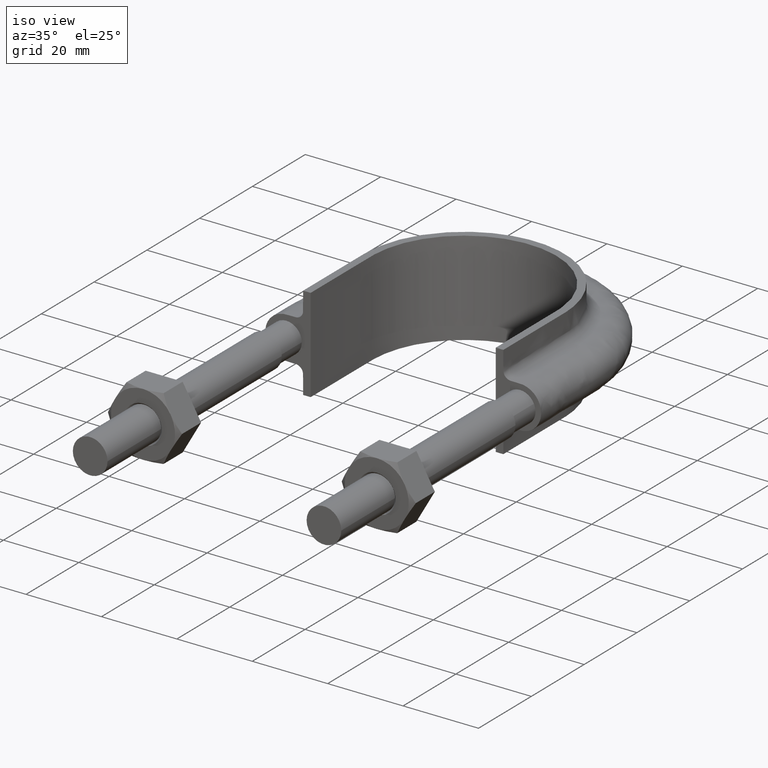
[diagram: clean part render]
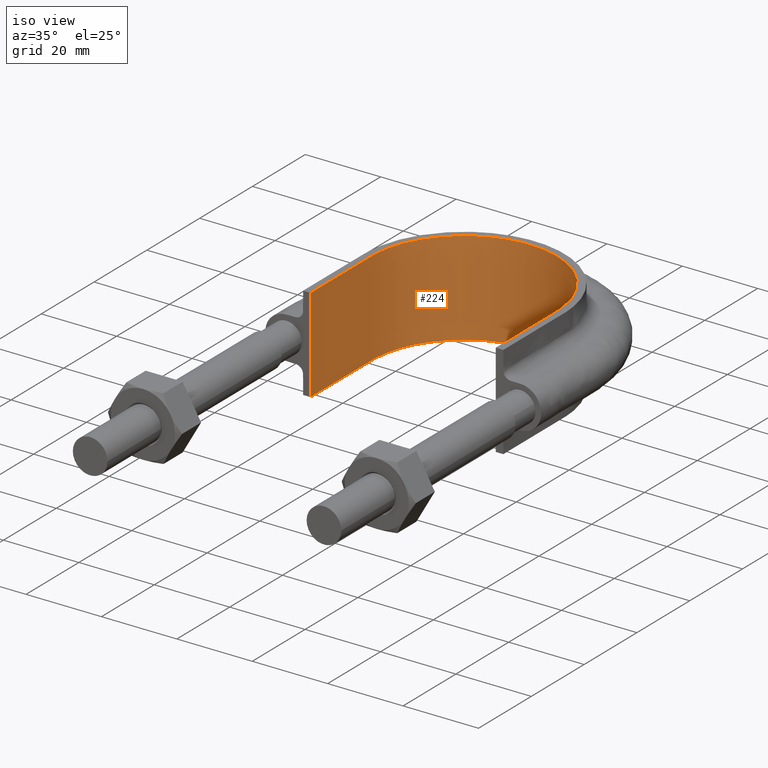
[diagram: tour spotlight — one face highlighted and labeled with its STEP entity id]
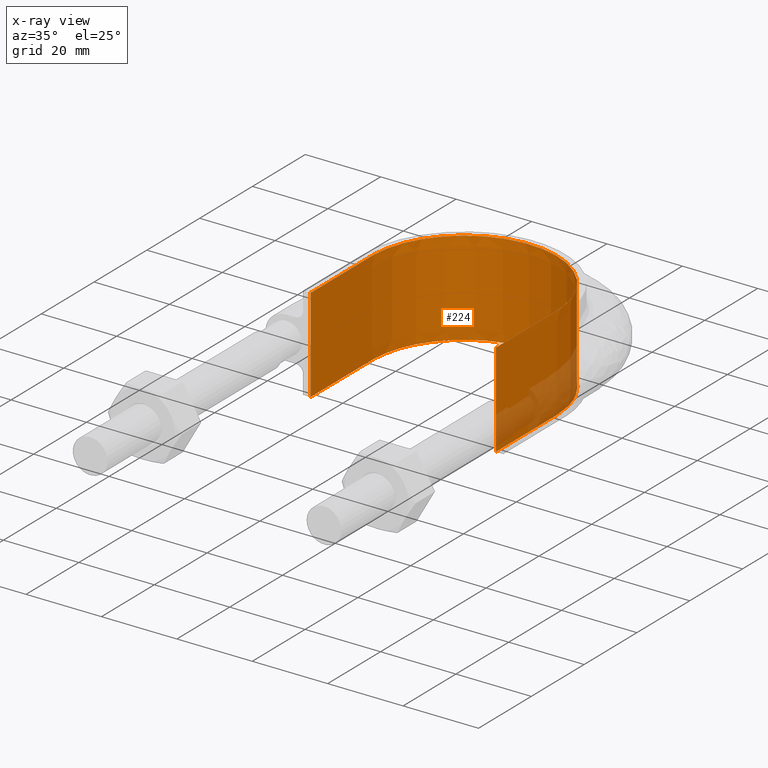
[diagram: x-ray of the same camera — body ghosted, this tour face saturated]
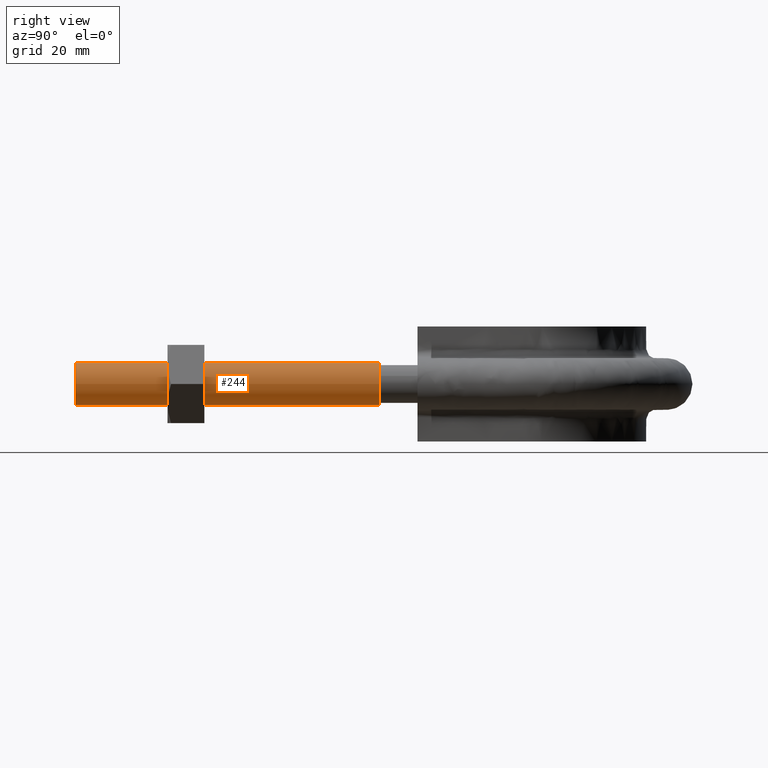
[diagram: tour spotlight — one face highlighted and labeled with its STEP entity id]
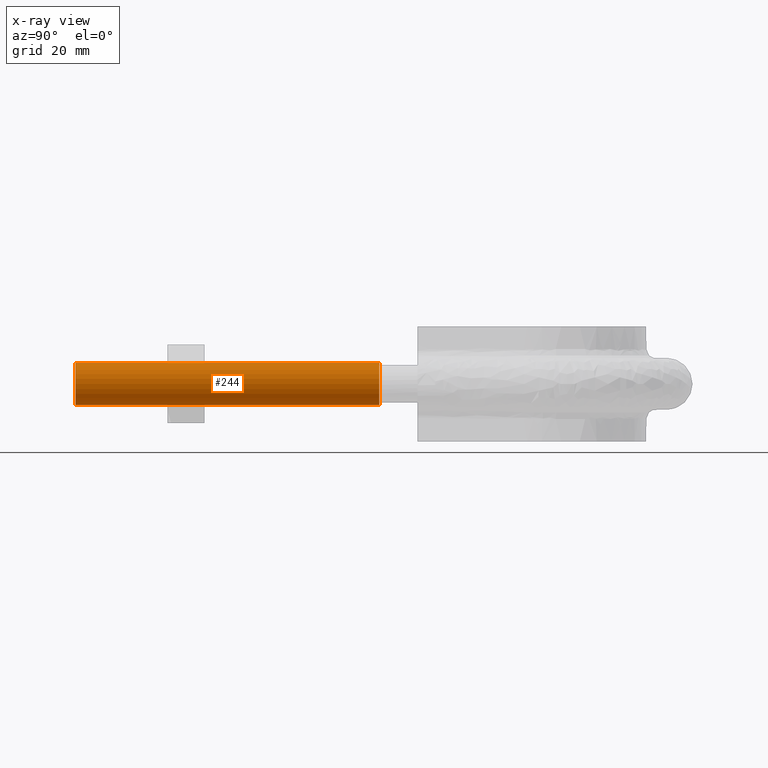
[diagram: x-ray of the same camera — body ghosted, this tour face saturated]
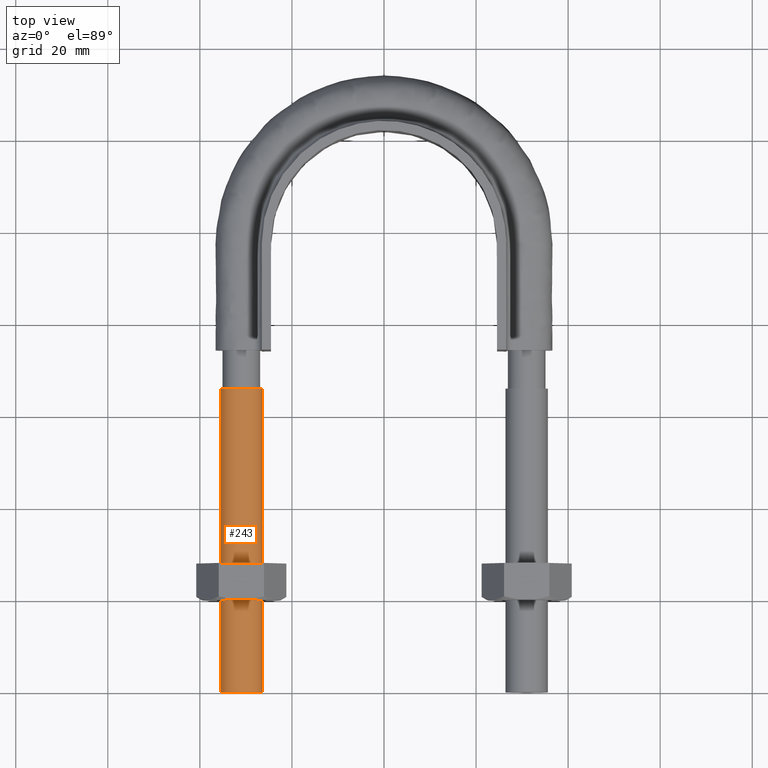
[diagram: tour spotlight — one face highlighted and labeled with its STEP entity id]
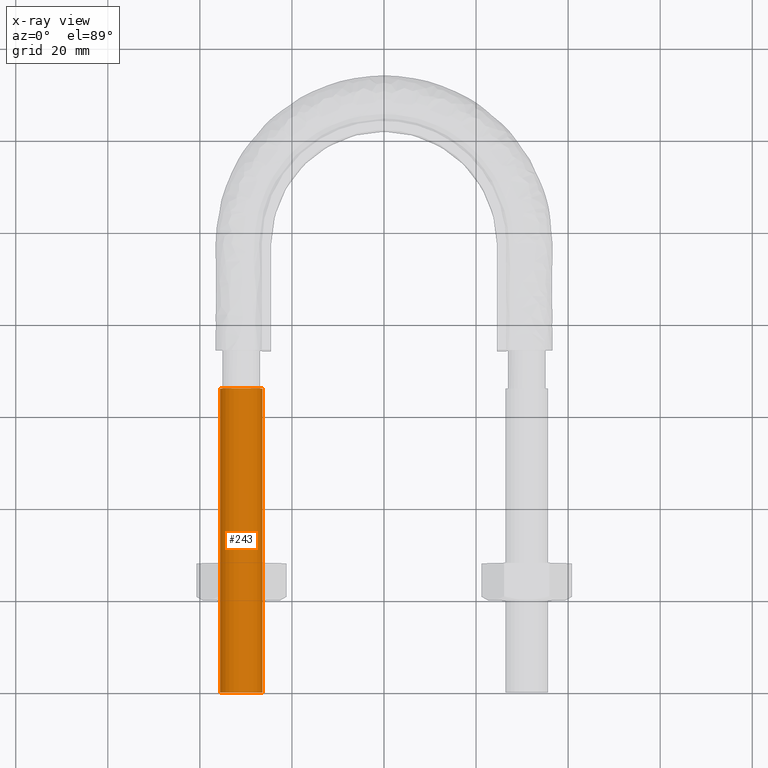
[diagram: x-ray of the same camera — body ghosted, this tour face saturated]
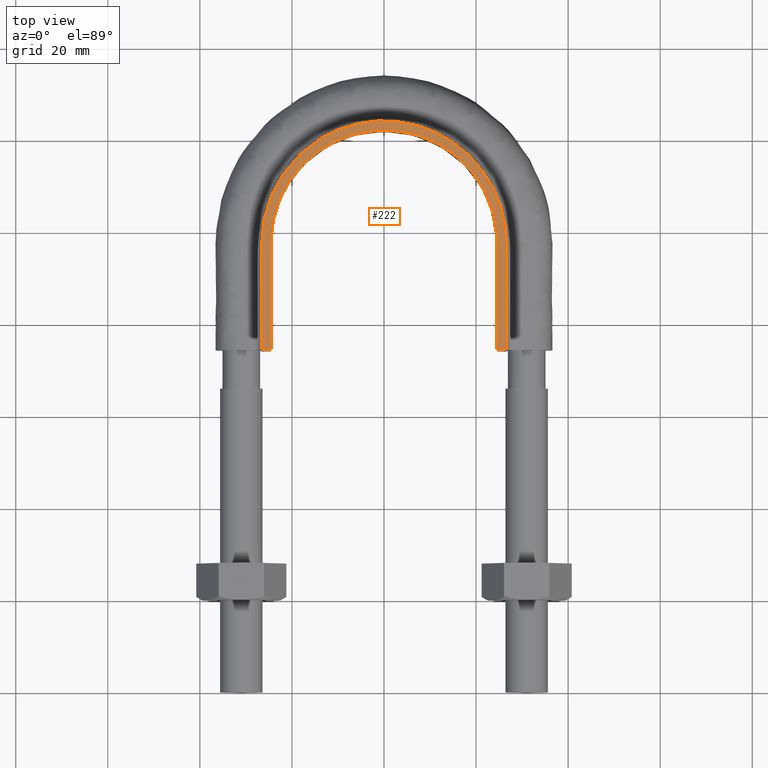
[diagram: tour spotlight — one face highlighted and labeled with its STEP entity id]
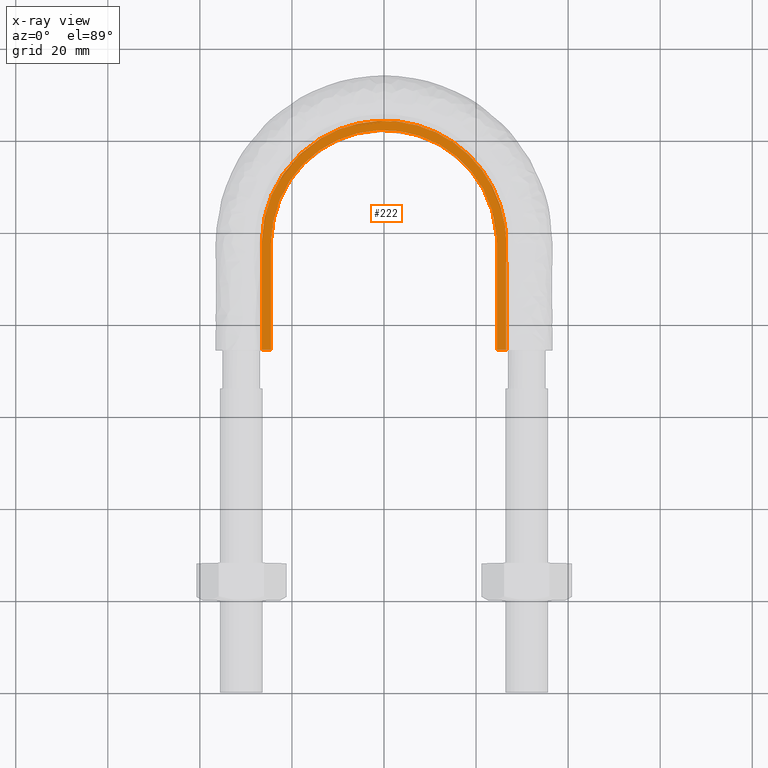
[diagram: x-ray of the same camera — body ghosted, this tour face saturated]
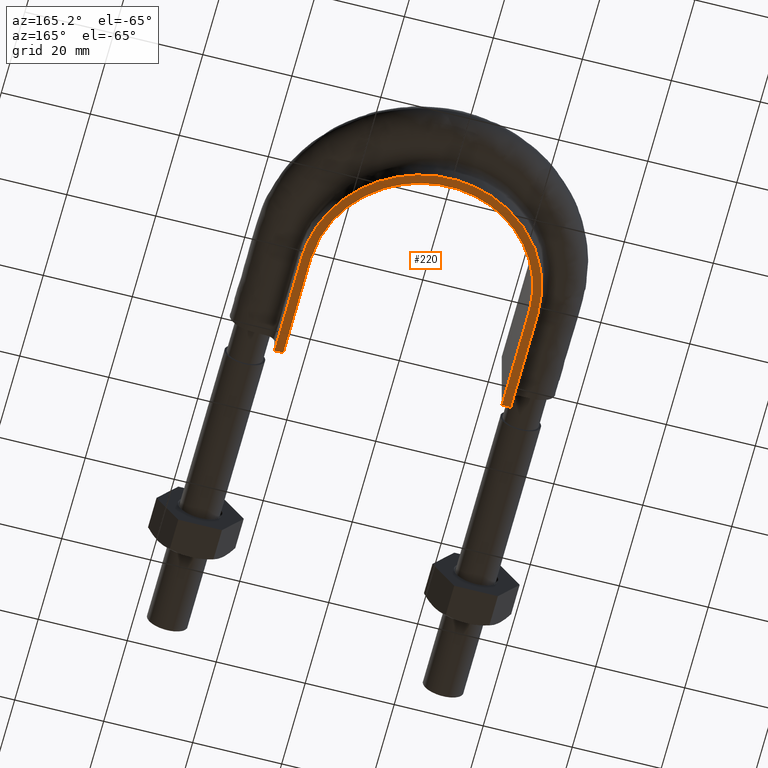
[diagram: tour spotlight — one face highlighted and labeled with its STEP entity id]
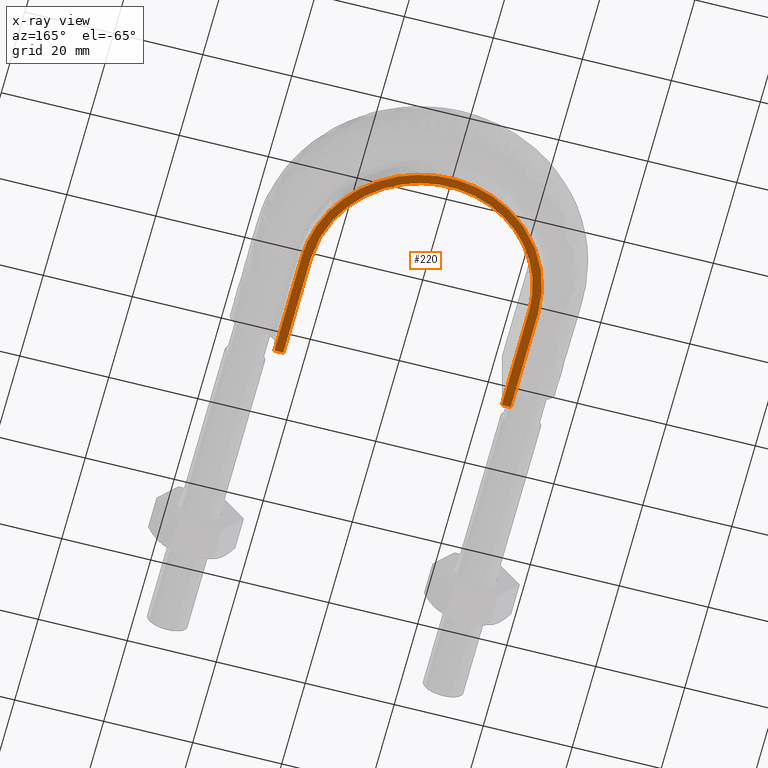
[diagram: x-ray of the same camera — body ghosted, this tour face saturated]
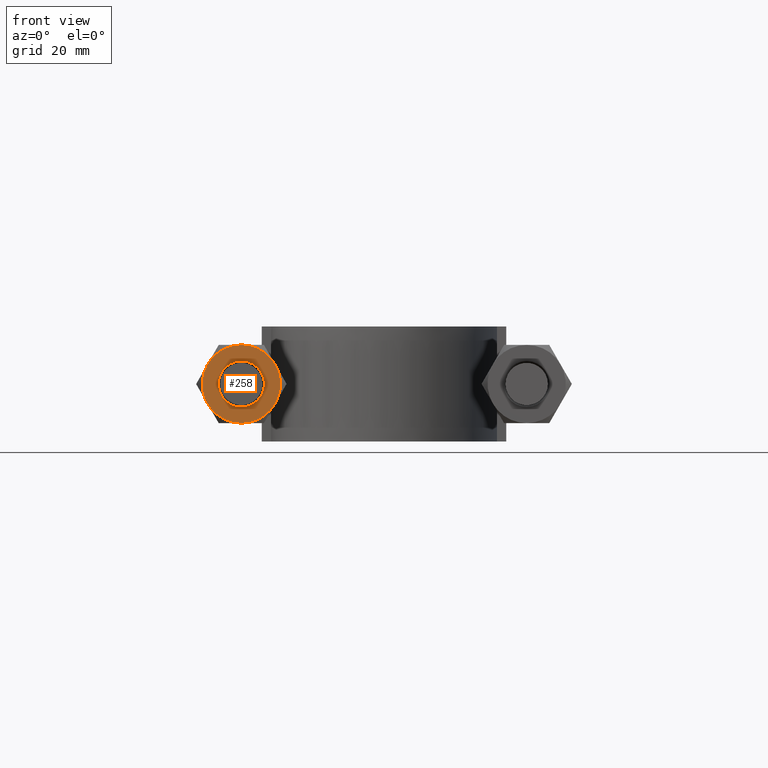
[diagram: tour spotlight — one face highlighted and labeled with its STEP entity id]
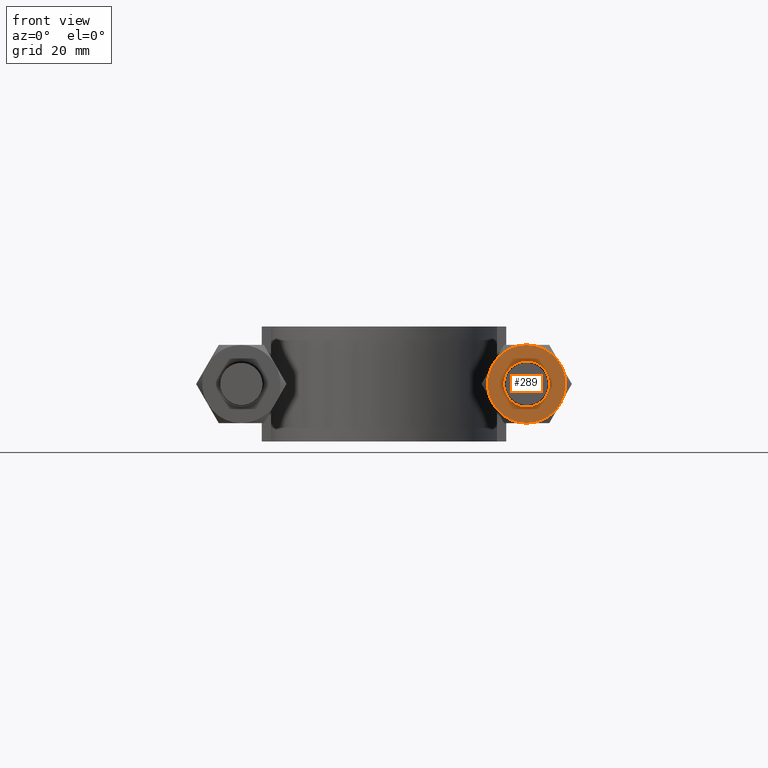
[diagram: tour spotlight — one face highlighted and labeled with its STEP entity id]
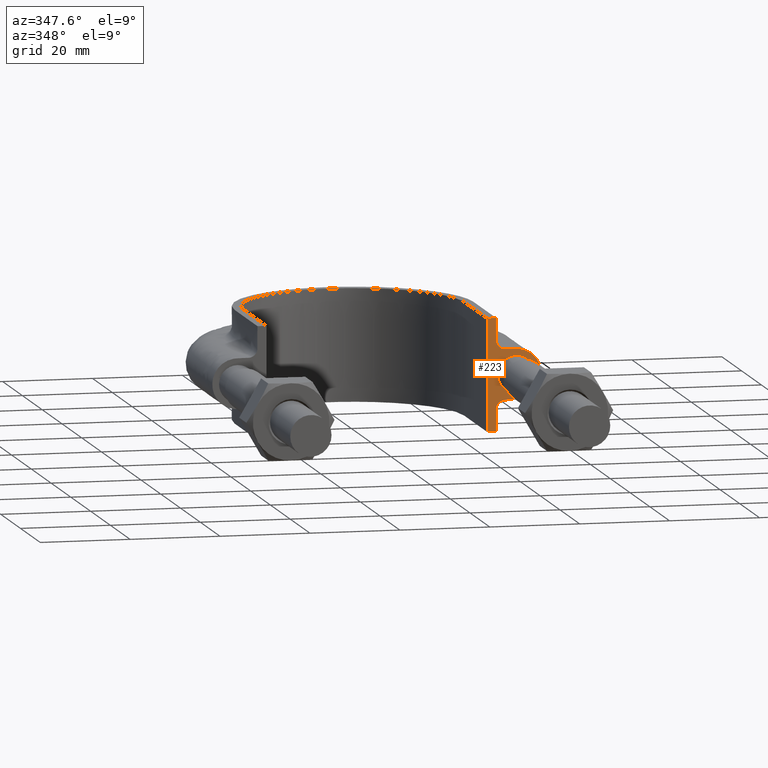
[diagram: tour spotlight — one face highlighted and labeled with its STEP entity id]
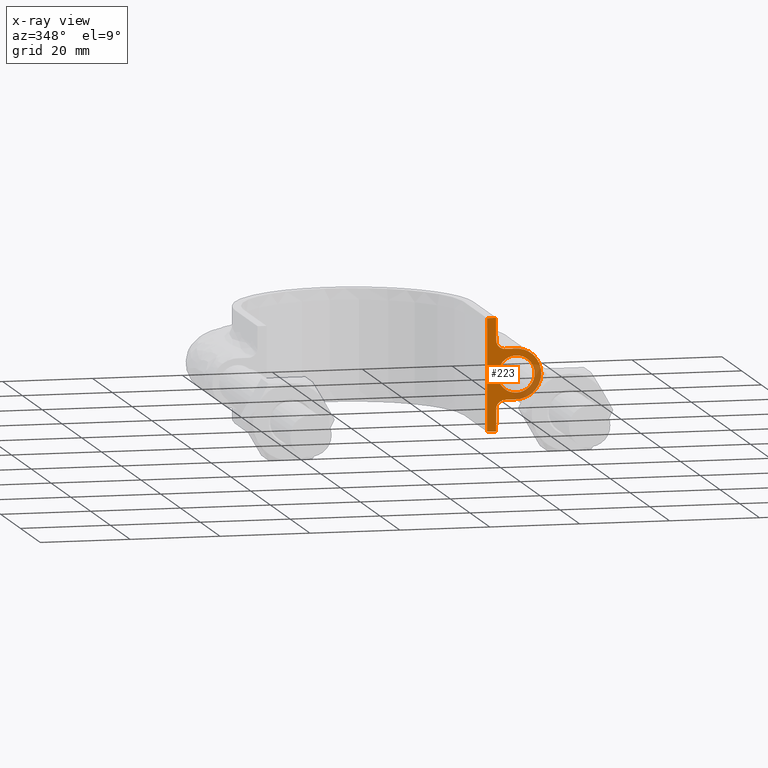
[diagram: x-ray of the same camera — body ghosted, this tour face saturated]
A machine part: a face-by-face anatomy tour. The part has 76 B-rep faces; the first image is the clean iso view, then the 8 largest visible faces are spotlighted one at a time (largest first), each with its STEP entity span.

Face 1 — iso view, entity #224. An x-ray twin of the same camera follows (body ghosted, this face saturated) — the face is partly hidden behind the body. In plain terms, the highlighted face is a SurfaceOfExtrusion surface.
Definition (entity closure, byte-faithful):
#224 = ADVANCED_FACE( '', ( #308 ), #309, .T. );
#308 = FACE_OUTER_BOUND( '', #1006, .T. );
#309 = SURFACE_OF_LINEAR_EXTRUSION( '', #1007, #1008 );
#1006 = EDGE_LOOP( '', ( #1499, #1500, #1501, #1502 ) );
#1007 = B_SPLINE_CURVE_WITH_KNOTS( '', 3, ( #1503, #1504, #1505, #1506, #1507, #1508, #1509, #1510, #1511, #1512, #1513, #1514, #1515, #1516, #1517, #1518, #1519 ), .UNSPECIFIED., .F., .F., ( 4, 3, 1, 1, 1, 1, 1, 1, 1, 3, 4 ), ( -7.85424354243542, -7.00000000000000, -6.50000000000000, -6.00000000000000, -5.00000000000000, -4.00000000000000, -3.00000000000000, -2.00000000000000, -1.50000000000000, -1.00000000000000, -0.145756457564576 ), .UNSPECIFIED. );
#1008 = VECTOR( '', #1520, 1000.00000000000 );
#1499 = ORIENTED_EDGE( '', *, *, #2003, .T. );
#1500 = ORIENTED_EDGE( '', *, *, #2008, .T. );
#1501 = ORIENTED_EDGE( '', *, *, #2015, .F. );
#1502 = ORIENTED_EDGE( '', *, *, #2013, .T. );
#1503 = CARTESIAN_POINT( '', ( 24.5500000000000, 74.3000000000000, 12.5000100000910 ) );
#1504 = CARTESIAN_POINT( '', ( 24.5500000000000, 82.0166666666667, 12.5000100000910 ) );
#1505 = CARTESIAN_POINT( '', ( 24.5500000000000, 89.7333333333333, 12.5000100000910 ) );
#1506 = CARTESIAN_POINT( '', ( 24.5500000000000, 97.4500000000000, 12.5000100000910 ) );
#1507 = CARTESIAN_POINT( '', ( 24.5500000000000, 99.5780025041717, 12.5000100000910 ) );
#1508 = CARTESIAN_POINT( '', ( 23.9738358905282, 103.879860777333, 12.5000100000910 ) );
#1509 = CARTESIAN_POINT( '', ( 20.6884777838097, 111.863307199879, 12.5000100000910 ) );
#1510 = CARTESIAN_POINT( '', ( 12.8483754366917, 119.705931314422, 12.5000100000910 ) );
#1511 = CARTESIAN_POINT( '', ( 2.20195579749634E-014, 123.147034342789, 12.5000100000910 ) );
#1512 = CARTESIAN_POINT( '', ( -12.8483754366917, 119.705931314422, 12.5000100000910 ) );
#1513 = CARTESIAN_POINT( '', ( -20.6884777838097, 111.863307199879, 12.5000100000910 ) );
#1514 = CARTESIAN_POINT( '', ( -23.9738358905281, 103.879860777333, 12.5000100000910 ) );
#1515 = CARTESIAN_POINT( '', ( -24.5500000000000, 99.5780025041717, 12.5000100000910 ) );
#1516 = CARTESIAN_POINT( '', ( -24.5500000000000, 97.4500000000000, 12.5000100000910 ) );
#1517 = CARTESIAN_POINT( '', ( -24.5500000000000, 89.7333333333333, 12.5000100000910 ) );
#1518 = CARTESIAN_POINT( '', ( -24.5500000000000, 82.0166666666667, 12.5000100000910 ) );
#1519 = CARTESIAN_POINT( '', ( -24.5500000000000, 74.3000000000000, 12.5000100000910 ) );
#1520 = DIRECTION( '', ( 0.000000000000000, 0.000000000000000, -1.00000000000000 ) );
#2003 = EDGE_CURVE( '', #2155, #2156, #2157, .T. );
#2008 = EDGE_CURVE( '', #2156, #2165, #2166, .F. );
#2013 = EDGE_CURVE( '', #2173, #2155, #2174, .T. );
#2015 = EDGE_CURVE( '', #2173, #2165, #2176, .T. );
#2155 = VERTEX_POINT( '', #2405 );
#2156 = VERTEX_POINT( '', #2406 );
#2157 = LINE( '', #2407, #2408 );
#2165 = VERTEX_POINT( '', #2457 );
#2166 = B_SPLINE_CURVE_WITH_KNOTS( '', 3, ( #2458, #2459, #2460, #2461, #2462, #2463, #2464, #2465, #2466, #2467, #2468, #2469, #2470, #2471, #2472, #2473, #2474 ), .UNSPECIFIED., .F., .F., ( 4, 3, 1, 1, 1, 1, 1, 1, 1, 3, 4 ), ( -7.85424354243542, -7.00000000000000, -6.50000000000000, -6.00000000000000, -5.00000000000000, -4.00000000000000, -3.00000000000000, -2.00000000000000, -1.50000000000000, -1.00000000000000, -0.145756457564576 ), .UNSPECIFIED. );
#2173 = VERTEX_POINT( '', #2544 );
#2174 = B_SPLINE_CURVE_WITH_KNOTS( '', 3, ( #2545, #2546, #2547, #2548, #2549, #2550, #2551, #2552, #2553, #2554, #2555, #2556, #2557, #2558, #2559, #2560, #2561, #2562, #2563, #2564, #2565, #2566, #2567, #2568, #2569, #2570, #2571, #2572, #2573, #2574, #2575, #2576, #2577, #2578, #2579, #2580, #2581, #2582, #2583, #2584, #2585, #2586, #2587, #2588, #2589, #2590, #2591, #2592, #2593, #2594, #2595, #2596, #2597, #2598, #2599, #2600, #2601, #2602, #2603, #2604, #2605, #2606, #2607, #2608, #2609, #2610, #2611 ), .UNSPECIFIED., .F., .F., ( 4, 1, 2, 2, 2, 2, 2, 2, 2, 2, 2, 2, 2, 2, 2, 2, 2, 2, 2, 2, 2, 2, 2, 2, 2, 2, 2, 2, 2, 2, 2, 2, 1, 1, 4 ), ( 0.000000000000000, 0.0154145326467002, 0.0231217989700503, 0.0250486155508878, 0.0269754321317254, 0.0308290652934005, 0.0346826984550756, 0.0366095150359132, 0.0385363316167507, 0.0423899647784258, 0.0443167813592634, 0.0462435979401010, 0.0500972311017761, 0.0520240476826136, 0.0539508642634512, 0.0578044974251263, 0.0597313140059639, 0.0616581305868014, 0.0655117637484765, 0.0674385803293141, 0.0693653969101517, 0.0732190300718268, 0.0751458466526643, 0.0770726632335019, 0.0809262963951769, 0.0828531129760145, 0.0847799295568520, 0.0924871958802022, 0.0944140124610398, 0.0963408290418773, 0.100194462203552, 0.102121278784390, 0.104048095365227, 0.107901728526903, 0.123316261173603 ), .UNSPECIFIED. );
#2176 = LINE( '', #2614, #2615 );
#2405 = CARTESIAN_POINT( '', ( -24.5500000000000, 74.3000000000000, 12.5000000000000 ) );
#2406 = CARTESIAN_POINT( '', ( -24.5500000000000, 74.3000000000000, -12.5000000000000 ) );
#2407 = CARTESIAN_POINT( '', ( -24.5500000000000, 74.3000000000000, 12.5000100000910 ) );
#2408 = VECTOR( '', #3051, 1000.00000000000 );
#2457 = CARTESIAN_POINT( '', ( 24.5500000000000, 74.3000000000000, -12.5000000000000 ) );
#2458 = CARTESIAN_POINT( '', ( 24.5500000000000, 74.3000000000000, -12.5000000000000 ) );
#2459 = CARTESIAN_POINT( '', ( 24.5500000000000, 82.0166666666667, -12.5000000000000 ) );
#2460 = CARTESIAN_POINT( '', ( 24.5500000000000, 89.7333333333333, -12.5000000000000 ) );
#2461 = CARTESIAN_POINT( '', ( 24.5500000000000, 97.4500000000000, -12.5000000000000 ) );
#2462 = CARTESIAN_POINT( '', ( 24.5500000000000, 99.5780025041717, -12.5000000000000 ) );
#2463 = CARTESIAN_POINT( '', ( 23.9738358905282, 103.879860777333, -12.5000000000000 ) );
#2464 = CARTESIAN_POINT( '', ( 20.6884777838097, 111.863307199879, -12.5000000000000 ) );
#2465 = CARTESIAN_POINT( '', ( 12.8483754366917, 119.705931314422, -12.5000000000000 ) );
#2466 = CARTESIAN_POINT( '', ( 2.20195579749634E-014, 123.147034342789, -12.5000000000000 ) );
#2467 = CARTESIAN_POINT( '', ( -12.8483754366917, 119.705931314422, -12.5000000000000 ) );
#2468 = CARTESIAN_POINT( '', ( -20.6884777838097, 111.863307199879, -12.5000000000000 ) );
#2469 = CARTESIAN_POINT( '', ( -23.9738358905281, 103.879860777333, -12.5000000000000 ) );
#2470 = CARTESIAN_POINT( '', ( -24.5500000000000, 99.5780025041717, -12.5000000000000 ) );
#2471 = CARTESIAN_POINT( '', ( -24.5500000000000, 97.4500000000000, -12.5000000000000 ) );
#2472 = CARTESIAN_POINT( '', ( -24.5500000000000, 89.7333333333333, -12.5000000000000 ) );
#2473 = CARTESIAN_POINT( '', ( -24.5500000000000, 82.0166666666667, -12.5000000000000 ) );
#2474 = CARTESIAN_POINT( '', ( -24.5500000000000, 74.3000000000000, -12.5000000000000 ) );
#2544 = CARTESIAN_POINT( '', ( 24.5500000000000, 74.3000000000000, 12.5000000000000 ) );
#2545 = CARTESIAN_POINT( '', ( 24.5500000000000, 74.3000000000000, 12.5000000000000 ) );
#2546 = CARTESIAN_POINT( '', ( 24.5500000000000, 79.4384221999800, 12.5000000000000 ) );
#2547 = CARTESIAN_POINT( '', ( 24.5500000000000, 87.1460554999499, 12.5000000000000 ) );
#2548 = CARTESIAN_POINT( '', ( 24.5500000000000, 94.8536887999199, 12.5000000000000 ) );
#2549 = CARTESIAN_POINT( '', ( 24.5500000000000, 98.0652026749074, 12.5000000000000 ) );
#2550 = CARTESIAN_POINT( '', ( 24.5252751330927, 98.7072641688934, 12.5000000000000 ) );
#2551 = CARTESIAN_POINT( '', ( 24.4234462537604, 99.9908760077757, 12.5000000000000 ) );
#2552 = CARTESIAN_POINT( '', ( 24.3467657946690, 100.634220258934, 12.5000000000000 ) );
#2553 = CARTESIAN_POINT( '', ( 24.0418819320213, 102.551204048510, 12.5000000000000 ) );
#2554 = CARTESIAN_POINT( '', ( 23.7423938741596, 103.798075614365, 12.5000000000000 ) );
#2555 = CARTESIAN_POINT( '', ( 22.9567434107526, 106.231455730255, 12.5000000000000 ) );
#2556 = CARTESIAN_POINT( '', ( 22.4705596365819, 107.417957370532, 12.5000000000000 ) );
#2557 = CARTESIAN_POINT( '', ( 21.5925627875954, 109.149619348676, 12.5000000000000 ) );
#2558 = CARTESIAN_POINT( '', ( 21.2766071075014, 109.714973605172, 12.5000000000000 ) );
#2559 = CARTESIAN_POINT( '', ( 20.6053719022684, 110.810534866425, 12.5000000000000 ) );
#2560 = CARTESIAN_POINT( '', ( 20.2492833691971, 111.342698259692, 12.5000000000000 ) );
#2561 = CARTESIAN_POINT( '', ( 19.1215068537777, 112.893787664672, 12.5000000000000 ) );
#2562 = CARTESIAN_POINT( '', ( 18.2907926568853, 113.867682679625, 12.5000000000000 ) );
#2563 = CARTESIAN_POINT( '', ( 16.9250762587396, 115.237248160513, 12.5000000000000 ) );
#2564 = CARTESIAN_POINT( '', ( 16.4483141734127, 115.679458076329, 12.5000000000000 ) );
#2565 = CARTESIAN_POINT( '', ( 15.4703087185621, 116.517984206518, 12.5000000000000 ) );
#2566 = CARTESIAN_POINT( '', ( 14.9674075928235, 116.916154886691, 12.5000000000000 ) );
#2567 = CARTESIAN_POINT( '', ( 13.4174319314453, 118.048031587190, 12.5000000000000 ) );
#2568 = CARTESIAN_POINT( '', ( 12.3291014903938, 118.719127124092, 12.5000000000000 ) );
#2569 = CARTESIAN_POINT( '', ( 10.6113550739500, 119.596392806505, 12.5000000000000 ) );
#2570 = CARTESIAN_POINT( '', ( 10.0221200459754, 119.868384793433, 12.5000000000000 ) );
#2571 = CARTESIAN_POINT( '', ( 8.82789979738735, 120.363314078471, 12.5000000000000 ) );
#2572 = CARTESIAN_POINT( '', ( 8.22453257139379, 120.585861709962, 12.5000000000000 ) );
#2573 = CARTESIAN_POINT( '', ( 6.39627757875444, 121.181214530966, 12.5000000000000 ) );
#2574 = CARTESIAN_POINT( '', ( 5.15338195845855, 121.482308901390, 12.5000000000000 ) );
#2575 = CARTESIAN_POINT( '', ( 3.25266287101866, 121.789095428283, 12.5000000000000 ) );
#2576 = CARTESIAN_POINT( '', ( 2.61299113566870, 121.867071354940, 12.5000000000000 ) );
#2577 = CARTESIAN_POINT( '', ( 1.32093241036658, 121.972388560719, 12.5000000000000 ) );
#2578 = CARTESIAN_POINT( '', ( 0.676406080425299, 121.999046675169, 12.5000000000000 ) );
#2579 = CARTESIAN_POINT( '', ( -1.24870371014262, 122.001831348721, 12.5000000000000 ) );
#2580 = CARTESIAN_POINT( '', ( -2.52265182528364, 121.901467818298, 12.5000000000000 ) );
#2581 = CARTESIAN_POINT( '', ( -4.41989760294836, 121.603117496314, 12.5000000000000 ) );
#2582 = CARTESIAN_POINT( '', ( -5.05001948103506, 121.478882110562, 12.5000000000000 ) );
#2583 = CARTESIAN_POINT( '', ( -6.30559148152638, 121.179922232146, 12.5000000000000 ) );
#2584 = CARTESIAN_POINT( '', ( -6.93138081059463, 121.004801946249, 12.5000000000000 ) );
#2585 = CARTESIAN_POINT( '', ( -8.76889753233618, 120.412561446254, 12.5000000000000 ) );
#2586 = CARTESIAN_POINT( '', ( -9.95225725658806, 119.926780134564, 12.5000000000000 ) );
#2587 = CARTESIAN_POINT( '', ( -11.6646188489645, 119.061238084006, 12.5000000000000 ) );
#2588 = CARTESIAN_POINT( '', ( -12.2248697137767, 118.749715852754, 12.5000000000000 ) );
#2589 = CARTESIAN_POINT( '', ( -13.3236776153919, 118.079298526967, 12.5000000000000 ) );
#2590 = CARTESIAN_POINT( '', ( -13.8646027205754, 117.718764312176, 12.5000000000000 ) );
#2591 = CARTESIAN_POINT( '', ( -15.4323331862347, 116.581610342879, 12.5000000000000 ) );
#2592 = CARTESIAN_POINT( '', ( -16.4066904175183, 115.749931319893, 12.5000000000000 ) );
#2593 = CARTESIAN_POINT( '', ( -17.7664797273133, 114.396670964759, 12.5000000000000 ) );
#2594 = CARTESIAN_POINT( '', ( -18.2026751411940, 113.927846292992, 12.5000000000000 ) );
#2595 = CARTESIAN_POINT( '', ( -19.0403725195657, 112.954141191624, 12.5000000000000 ) );
#2596 = CARTESIAN_POINT( '', ( -19.4425779981796, 112.448302440163, 12.5000000000000 ) );
#2597 = CARTESIAN_POINT( '', ( -21.3557319354795, 109.835383435035, 12.5000000000000 ) );
#2598 = CARTESIAN_POINT( '', ( -22.5176023500940, 107.559503335252, 12.5000000000000 ) );
#2599 = CARTESIAN_POINT( '', ( -23.5216696114527, 104.489036138194, 12.5000000000000 ) );
#2600 = CARTESIAN_POINT( '', ( -23.6990122608683, 103.864746296536, 12.5000000000000 ) );
#2601 = CARTESIAN_POINT( '', ( -24.0024245935730, 102.614723986779, 12.5000000000000 ) );
#2602 = CARTESIAN_POINT( '', ( -24.1294131227665, 101.986428305825, 12.5000000000000 ) );
#2603 = CARTESIAN_POINT( '', ( -24.4371992964721, 100.091817044920, 12.5000000000000 ) );
#2604 = CARTESIAN_POINT( '', ( -24.5457173567177, 98.8158968179810, 12.5000000000000 ) );
#2605 = CARTESIAN_POINT( '', ( -24.5519571685428, 96.8812155098235, 12.5000000000000 ) );
#2606 = CARTESIAN_POINT( '', ( -24.5500000000000, 96.2357852822297, 12.5000000000000 ) );
#2607 = CARTESIAN_POINT( '', ( -24.5500000000000, 94.9454449715104, 12.5000000000000 ) );
#2608 = CARTESIAN_POINT( '', ( -24.5500000000000, 93.0099345054312, 12.5000000000000 ) );
#2609 = CARTESIAN_POINT( '', ( -24.5500000000000, 85.9130627964745, 12.5000000000000 ) );
#2610 = CARTESIAN_POINT( '', ( -24.5500000000000, 79.4613612428776, 12.5000000000000 ) );
#2611 = CARTESIAN_POINT( '', ( -24.5500000000000, 74.3000000000000, 12.5000000000000 ) );
#2614 = CARTESIAN_POINT( '', ( 24.5500000000000, 74.3000000000000, 12.5000100000910 ) );
#2615 = VECTOR( '', #3056, 1000.00000000000 );
#3051 = DIRECTION( '', ( 0.000000000000000, 0.000000000000000, -1.00000000000000 ) );
#3056 = DIRECTION( '', ( 0.000000000000000, 0.000000000000000, -1.00000000000000 ) );

Face 2 — right view, entity #244. An x-ray twin of the same camera follows (body ghosted, this face saturated) — the face is partly hidden behind the body. In plain terms, the highlighted cylindrical surface (bore or boss wall) has radius 4.6 mm, axis along (0, 1, 0).
Definition (entity closure, byte-faithful):
#244 = ADVANCED_FACE( '', ( #355, #356 ), #357, .T. );
#355 = FACE_OUTER_BOUND( '', #1352, .T. );
#356 = FACE_OUTER_BOUND( '', #1353, .T. );
#357 = CYLINDRICAL_SURFACE( '', #1354, 4.60000000000000 );
#1352 = EDGE_LOOP( '', ( #1632 ) );
#1353 = EDGE_LOOP( '', ( #1633 ) );
#1354 = AXIS2_PLACEMENT_3D( '', #1634, #1635, #1636 );
#1632 = ORIENTED_EDGE( '', *, *, #2048, .T. );
#1633 = ORIENTED_EDGE( '', *, *, #2047, .F. );
#1634 = CARTESIAN_POINT( '', ( 31.0000000000000, 66.0000000000000, 2.04050033705654E-014 ) );
#1635 = DIRECTION( '', ( 2.44921270764475E-016, 1.00000000000000, 3.06151588455594E-016 ) );
#1636 = DIRECTION( '', ( 1.00000000000000, -2.44921270764475E-016, -3.74915180455534E-032 ) );
#2047 = EDGE_CURVE( '', #2225, #2225, #2226, .T. );
#2048 = EDGE_CURVE( '', #2227, #2227, #2228, .T. );
#2225 = VERTEX_POINT( '', #2715 );
#2226 = CIRCLE( '', #2716, 4.60000000000000 );
#2227 = VERTEX_POINT( '', #2717 );
#2228 = CIRCLE( '', #2718, 4.60000000000000 );
#2715 = CARTESIAN_POINT( '', ( 35.6000000000000, -8.71919723921533E-015, 1.98998532496135E-016 ) );
#2716 = AXIS2_PLACEMENT_3D( '', #3105, #3106, #3107 );
#2717 = CARTESIAN_POINT( '', ( 35.6000000000000, 66.0000000000000, 2.04050033705654E-014 ) );
#2718 = AXIS2_PLACEMENT_3D( '', #3108, #3109, #3110 );
#3105 = CARTESIAN_POINT( '', ( 31.0000000000000, -7.59255939369874E-015, 1.98998532496135E-016 ) );
#3106 = DIRECTION( '', ( -2.44921270764475E-016, -1.00000000000000, -3.06151588455594E-016 ) );
#3107 = DIRECTION( '', ( 1.00000000000000, -2.44921270764475E-016, -3.74915180455534E-032 ) );
#3108 = CARTESIAN_POINT( '', ( 31.0000000000000, 66.0000000000000, 2.04050033705654E-014 ) );
#3109 = DIRECTION( '', ( -2.44921270764475E-016, -1.00000000000000, -3.06151588455594E-016 ) );
#3110 = DIRECTION( '', ( 1.00000000000000, -2.44921270764475E-016, -3.74915180455534E-032 ) );

Face 3 — top view, entity #243. An x-ray twin of the same camera follows (body ghosted, this face saturated) — the face is partly hidden behind the body. In plain terms, the highlighted cylindrical surface (bore or boss wall) has radius 4.6 mm, axis along (0, 1, 0).
Definition (entity closure, byte-faithful):
#243 = ADVANCED_FACE( '', ( #352, #353 ), #354, .T. );
#352 = FACE_OUTER_BOUND( '', #1349, .T. );
#353 = FACE_OUTER_BOUND( '', #1350, .T. );
#354 = CYLINDRICAL_SURFACE( '', #1351, 4.60000000000000 );
#1349 = EDGE_LOOP( '', ( #1627 ) );
#1350 = EDGE_LOOP( '', ( #1628 ) );
#1351 = AXIS2_PLACEMENT_3D( '', #1629, #1630, #1631 );
#1627 = ORIENTED_EDGE( '', *, *, #2050, .T. );
#1628 = ORIENTED_EDGE( '', *, *, #2049, .F. );
#1629 = CARTESIAN_POINT( '', ( -31.0000000000000, 66.0000000000000, 2.04050033705654E-014 ) );
#1630 = DIRECTION( '', ( 2.44921270764475E-016, 1.00000000000000, 3.06151588455594E-016 ) );
#1631 = DIRECTION( '', ( 1.00000000000000, -2.44921270764475E-016, -3.74915180455534E-032 ) );
#2049 = EDGE_CURVE( '', #2229, #2229, #2230, .T. );
#2050 = EDGE_CURVE( '', #2231, #2231, #2232, .T. );
#2229 = VERTEX_POINT( '', #2719 );
#2230 = CIRCLE( '', #2720, 4.60000000000000 );
#2231 = VERTEX_POINT( '', #2721 );
#2232 = CIRCLE( '', #2722, 4.60000000000000 );
#2719 = CARTESIAN_POINT( '', ( -26.4000000000000, 6.46592154818215E-015, 1.98998532496137E-016 ) );
#2720 = AXIS2_PLACEMENT_3D( '', #3111, #3112, #3113 );
#2721 = CARTESIAN_POINT( '', ( -26.4000000000000, 66.0000000000000, 2.04050033705654E-014 ) );
#2722 = AXIS2_PLACEMENT_3D( '', #3114, #3115, #3116 );
#3111 = CARTESIAN_POINT( '', ( -31.0000000000000, 7.59255939369874E-015, 1.98998532496137E-016 ) );
#3112 = DIRECTION( '', ( -2.44921270764475E-016, -1.00000000000000, -3.06151588455594E-016 ) );
#3113 = DIRECTION( '', ( 1.00000000000000, -2.44921270764475E-016, -3.74915180455534E-032 ) );
#3114 = CARTESIAN_POINT( '', ( -31.0000000000000, 66.0000000000000, 2.04050033705654E-014 ) );
#3115 = DIRECTION( '', ( -2.44921270764475E-016, -1.00000000000000, -3.06151588455594E-016 ) );
#3116 = DIRECTION( '', ( 1.00000000000000, -2.44921270764475E-016, -3.74915180455534E-032 ) );

Face 4 — top view, entity #222. An x-ray twin of the same camera follows (body ghosted, this face saturated) — the face is partly hidden behind the body. In plain terms, the highlighted planar face has unit normal (0, 0, 1).
Definition (entity closure, byte-faithful):
#222 = ADVANCED_FACE( '', ( #303 ), #304, .T. );
#303 = FACE_OUTER_BOUND( '', #1001, .T. );
#304 = PLANE( '', #1002 );
#1001 = EDGE_LOOP( '', ( #1484, #1485, #1486, #1487 ) );
#1002 = AXIS2_PLACEMENT_3D( '', #1488, #1489, #1490 );
#1484 = ORIENTED_EDGE( '', *, *, #2004, .T. );
#1485 = ORIENTED_EDGE( '', *, *, #2013, .F. );
#1486 = ORIENTED_EDGE( '', *, *, #2014, .T. );
#1487 = ORIENTED_EDGE( '', *, *, #2011, .T. );
#1488 = CARTESIAN_POINT( '', ( 40.0000000000000, 144.300000000000, 12.5000000000000 ) );
#1489 = DIRECTION( '', ( 0.000000000000000, 0.000000000000000, 1.00000000000000 ) );
#1490 = DIRECTION( '', ( 1.00000000000000, 0.000000000000000, 0.000000000000000 ) );
#2004 = EDGE_CURVE( '', #2158, #2155, #2159, .F. );
#2011 = EDGE_CURVE( '', #2170, #2158, #2171, .F. );
#2013 = EDGE_CURVE( '', #2173, #2155, #2174, .T. );
#2014 = EDGE_CURVE( '', #2173, #2170, #2175, .F. );
#2155 = VERTEX_POINT( '', #2405 );
#2158 = VERTEX_POINT( '', #2409 );
#2159 = LINE( '', #2410, #2411 );
#2170 = VERTEX_POINT( '', #2495 );
#2171 = B_SPLINE_CURVE_WITH_KNOTS( '', 3, ( #2496, #2497, #2498, #2499, #2500, #2501, #2502, #2503, #2504, #2505, #2506, #2507, #2508, #2509, #2510, #2511, #2512 ), .UNSPECIFIED., .F., .F., ( 4, 3, 1, 1, 1, 1, 1, 1, 1, 3, 4 ), ( 0.145756457564577, 1.00000000000000, 1.50000000000000, 2.00000000000000, 3.00000000000000, 4.00000000000000, 5.00000000000000, 6.00000000000000, 6.50000000000000, 7.00000000000000, 7.85424354243542 ), .UNSPECIFIED. );
#2173 = VERTEX_POINT( '', #2544 );
#2174 = B_SPLINE_CURVE_WITH_KNOTS( '', 3, ( #2545, #2546, #2547, #2548, #2549, #2550, #2551, #2552, #2553, #2554, #2555, #2556, #2557, #2558, #2559, #2560, #2561, #2562, #2563, #2564, #2565, #2566, #2567, #2568, #2569, #2570, #2571, #2572, #2573, #2574, #2575, #2576, #2577, #2578, #2579, #2580, #2581, #2582, #2583, #2584, #2585, #2586, #2587, #2588, #2589, #2590, #2591, #2592, #2593, #2594, #2595, #2596, #2597, #2598, #2599, #2600, #2601, #2602, #2603, #2604, #2605, #2606, #2607, #2608, #2609, #2610, #2611 ), .UNSPECIFIED., .F., .F., ( 4, 1, 2, 2, 2, 2, 2, 2, 2, 2, 2, 2, 2, 2, 2, 2, 2, 2, 2, 2, 2, 2, 2, 2, 2, 2, 2, 2, 2, 2, 2, 2, 1, 1, 4 ), ( 0.000000000000000, 0.0154145326467002, 0.0231217989700503, 0.0250486155508878, 0.0269754321317254, 0.0308290652934005, 0.0346826984550756, 0.0366095150359132, 0.0385363316167507, 0.0423899647784258, 0.0443167813592634, 0.0462435979401010, 0.0500972311017761, 0.0520240476826136, 0.0539508642634512, 0.0578044974251263, 0.0597313140059639, 0.0616581305868014, 0.0655117637484765, 0.0674385803293141, 0.0693653969101517, 0.0732190300718268, 0.0751458466526643, 0.0770726632335019, 0.0809262963951769, 0.0828531129760145, 0.0847799295568520, 0.0924871958802022, 0.0944140124610398, 0.0963408290418773, 0.100194462203552, 0.102121278784390, 0.104048095365227, 0.107901728526903, 0.123316261173603 ), .UNSPECIFIED. );
#2175 = LINE( '', #2612, #2613 );
#2405 = CARTESIAN_POINT( '', ( -24.5500000000000, 74.3000000000000, 12.5000000000000 ) );
#2409 = CARTESIAN_POINT( '', ( -26.5500000000000, 74.3000000000000, 12.5000000000000 ) );
#2410 = CARTESIAN_POINT( '', ( 40.0000000000000, 74.3000000000000, 12.5000000000000 ) );
#2411 = VECTOR( '', #3052, 1000.00000000000 );
#2495 = CARTESIAN_POINT( '', ( 26.5500000000000, 74.3000000000000, 12.5000000000000 ) );
#2496 = CARTESIAN_POINT( '', ( -26.5500000000000, 74.3000000000000, 12.5000000000000 ) );
#2497 = CARTESIAN_POINT( '', ( -26.5500000000000, 82.0166666666667, 12.5000000000000 ) );
#2498 = CARTESIAN_POINT( '', ( -26.5500000000000, 89.7333333333334, 12.5000000000000 ) );
#2499 = CARTESIAN_POINT( '', ( -26.5500000000000, 97.4500000000000, 12.5000000000000 ) );
#2500 = CARTESIAN_POINT( '', ( -26.5500000000000, 99.7566352991258, 12.5000000000000 ) );
#2501 = CARTESIAN_POINT( '', ( -25.9278217826459, 104.401541095585, 12.5000000000000 ) );
#2502 = CARTESIAN_POINT( '', ( -22.3733615438456, 113.038744740351, 12.5000000000000 ) );
#2503 = CARTESIAN_POINT( '', ( -13.8952542493119, 121.518591858921, 12.5000000000000 ) );
#2504 = CARTESIAN_POINT( '', ( 2.27096309690985E-014, 125.240704070539, 12.5000000000000 ) );
#2505 = CARTESIAN_POINT( '', ( 13.8952542493119, 121.518591858921, 12.5000000000000 ) );
#2506 = CARTESIAN_POINT( '', ( 22.3733615438457, 113.038744740351, 12.5000000000000 ) );
#2507 = CARTESIAN_POINT( '', ( 25.9278217826460, 104.401541095585, 12.5000000000000 ) );
#2508 = CARTESIAN_POINT( '', ( 26.5500000000000, 99.7566352991258, 12.5000000000000 ) );
#2509 = CARTESIAN_POINT( '', ( 26.5500000000000, 97.4500000000000, 12.5000000000000 ) );
#2510 = CARTESIAN_POINT( '', ( 26.5500000000000, 89.7333333333333, 12.5000000000000 ) );
#2511 = CARTESIAN_POINT( '', ( 26.5500000000000, 82.0166666666666, 12.5000000000000 ) );
#2512 = CARTESIAN_POINT( '', ( 26.5500000000000, 74.3000000000000, 12.5000000000000 ) );
#2544 = CARTESIAN_POINT( '', ( 24.5500000000000, 74.3000000000000, 12.5000000000000 ) );
#2545 = CARTESIAN_POINT( '', ( 24.5500000000000, 74.3000000000000, 12.5000000000000 ) );
#2546 = CARTESIAN_POINT( '', ( 24.5500000000000, 79.4384221999800, 12.5000000000000 ) );
#2547 = CARTESIAN_POINT( '', ( 24.5500000000000, 87.1460554999499, 12.5000000000000 ) );
#2548 = CARTESIAN_POINT( '', ( 24.5500000000000, 94.8536887999199, 12.5000000000000 ) );
#2549 = CARTESIAN_POINT( '', ( 24.5500000000000, 98.0652026749074, 12.5000000000000 ) );
#2550 = CARTESIAN_POINT( '', ( 24.5252751330927, 98.7072641688934, 12.5000000000000 ) );
#2551 = CARTESIAN_POINT( '', ( 24.4234462537604, 99.9908760077757, 12.5000000000000 ) );
#2552 = CARTESIAN_POINT( '', ( 24.3467657946690, 100.634220258934, 12.5000000000000 ) );
#2553 = CARTESIAN_POINT( '', ( 24.0418819320213, 102.551204048510, 12.5000000000000 ) );
#2554 = CARTESIAN_POINT( '', ( 23.7423938741596, 103.798075614365, 12.5000000000000 ) );
#2555 = CARTESIAN_POINT( '', ( 22.9567434107526, 106.231455730255, 12.5000000000000 ) );
#2556 = CARTESIAN_POINT( '', ( 22.4705596365819, 107.417957370532, 12.5000000000000 ) );
#2557 = CARTESIAN_POINT( '', ( 21.5925627875954, 109.149619348676, 12.5000000000000 ) );
#2558 = CARTESIAN_POINT( '', ( 21.2766071075014, 109.714973605172, 12.5000000000000 ) );
#2559 = CARTESIAN_POINT( '', ( 20.6053719022684, 110.810534866425, 12.5000000000000 ) );
#2560 = CARTESIAN_POINT( '', ( 20.2492833691971, 111.342698259692, 12.5000000000000 ) );
#2561 = CARTESIAN_POINT( '', ( 19.1215068537777, 112.893787664672, 12.5000000000000 ) );
#2562 = CARTESIAN_POINT( '', ( 18.2907926568853, 113.867682679625, 12.5000000000000 ) );
#2563 = CARTESIAN_POINT( '', ( 16.9250762587396, 115.237248160513, 12.5000000000000 ) );
#2564 = CARTESIAN_POINT( '', ( 16.4483141734127, 115.679458076329, 12.5000000000000 ) );
#2565 = CARTESIAN_POINT( '', ( 15.4703087185621, 116.517984206518, 12.5000000000000 ) );
#2566 = CARTESIAN_POINT( '', ( 14.9674075928235, 116.916154886691, 12.5000000000000 ) );
#2567 = CARTESIAN_POINT( '', ( 13.4174319314453, 118.048031587190, 12.5000000000000 ) );
#2568 = CARTESIAN_POINT( '', ( 12.3291014903938, 118.719127124092, 12.5000000000000 ) );
#2569 = CARTESIAN_POINT( '', ( 10.6113550739500, 119.596392806505, 12.5000000000000 ) );
#2570 = CARTESIAN_POINT( '', ( 10.0221200459754, 119.868384793433, 12.5000000000000 ) );
#2571 = CARTESIAN_POINT( '', ( 8.82789979738735, 120.363314078471, 12.5000000000000 ) );
#2572 = CARTESIAN_POINT( '', ( 8.22453257139379, 120.585861709962, 12.5000000000000 ) );
#2573 = CARTESIAN_POINT( '', ( 6.39627757875444, 121.181214530966, 12.5000000000000 ) );
#2574 = CARTESIAN_POINT( '', ( 5.15338195845855, 121.482308901390, 12.5000000000000 ) );
#2575 = CARTESIAN_POINT( '', ( 3.25266287101866, 121.789095428283, 12.5000000000000 ) );
#2576 = CARTESIAN_POINT( '', ( 2.61299113566870, 121.867071354940, 12.5000000000000 ) );
#2577 = CARTESIAN_POINT( '', ( 1.32093241036658, 121.972388560719, 12.5000000000000 ) );
#2578 = CARTESIAN_POINT( '', ( 0.676406080425299, 121.999046675169, 12.5000000000000 ) );
#2579 = CARTESIAN_POINT( '', ( -1.24870371014262, 122.001831348721, 12.5000000000000 ) );
#2580 = CARTESIAN_POINT( '', ( -2.52265182528364, 121.901467818298, 12.5000000000000 ) );
#2581 = CARTESIAN_POINT( '', ( -4.41989760294836, 121.603117496314, 12.5000000000000 ) );
#2582 = CARTESIAN_POINT( '', ( -5.05001948103506, 121.478882110562, 12.5000000000000 ) );
#2583 = CARTESIAN_POINT( '', ( -6.30559148152638, 121.179922232146, 12.5000000000000 ) );
#2584 = CARTESIAN_POINT( '', ( -6.93138081059463, 121.004801946249, 12.5000000000000 ) );
#2585 = CARTESIAN_POINT( '', ( -8.76889753233618, 120.412561446254, 12.5000000000000 ) );
#2586 = CARTESIAN_POINT( '', ( -9.95225725658806, 119.926780134564, 12.5000000000000 ) );
#2587 = CARTESIAN_POINT( '', ( -11.6646188489645, 119.061238084006, 12.5000000000000 ) );
#2588 = CARTESIAN_POINT( '', ( -12.2248697137767, 118.749715852754, 12.5000000000000 ) );
#2589 = CARTESIAN_POINT( '', ( -13.3236776153919, 118.079298526967, 12.5000000000000 ) );
#2590 = CARTESIAN_POINT( '', ( -13.8646027205754, 117.718764312176, 12.5000000000000 ) );
#2591 = CARTESIAN_POINT( '', ( -15.4323331862347, 116.581610342879, 12.5000000000000 ) );
#2592 = CARTESIAN_POINT( '', ( -16.4066904175183, 115.749931319893, 12.5000000000000 ) );
#2593 = CARTESIAN_POINT( '', ( -17.7664797273133, 114.396670964759, 12.5000000000000 ) );
#2594 = CARTESIAN_POINT( '', ( -18.2026751411940, 113.927846292992, 12.5000000000000 ) );
#2595 = CARTESIAN_POINT( '', ( -19.0403725195657, 112.954141191624, 12.5000000000000 ) );
#2596 = CARTESIAN_POINT( '', ( -19.4425779981796, 112.448302440163, 12.5000000000000 ) );
#2597 = CARTESIAN_POINT( '', ( -21.3557319354795, 109.835383435035, 12.5000000000000 ) );
#2598 = CARTESIAN_POINT( '', ( -22.5176023500940, 107.559503335252, 12.5000000000000 ) );
#2599 = CARTESIAN_POINT( '', ( -23.5216696114527, 104.489036138194, 12.5000000000000 ) );
#2600 = CARTESIAN_POINT( '', ( -23.6990122608683, 103.864746296536, 12.5000000000000 ) );
#2601 = CARTESIAN_POINT( '', ( -24.0024245935730, 102.614723986779, 12.5000000000000 ) );
#2602 = CARTESIAN_POINT( '', ( -24.1294131227665, 101.986428305825, 12.5000000000000 ) );
#2603 = CARTESIAN_POINT( '', ( -24.4371992964721, 100.091817044920, 12.5000000000000 ) );
#2604 = CARTESIAN_POINT( '', ( -24.5457173567177, 98.8158968179810, 12.5000000000000 ) );
#2605 = CARTESIAN_POINT( '', ( -24.5519571685428, 96.8812155098235, 12.5000000000000 ) );
#2606 = CARTESIAN_POINT( '', ( -24.5500000000000, 96.2357852822297, 12.5000000000000 ) );
#2607 = CARTESIAN_POINT( '', ( -24.5500000000000, 94.9454449715104, 12.5000000000000 ) );
#2608 = CARTESIAN_POINT( '', ( -24.5500000000000, 93.0099345054312, 12.5000000000000 ) );
#2609 = CARTESIAN_POINT( '', ( -24.5500000000000, 85.9130627964745, 12.5000000000000 ) );
#2610 = CARTESIAN_POINT( '', ( -24.5500000000000, 79.4613612428776, 12.5000000000000 ) );
#2611 = CARTESIAN_POINT( '', ( -24.5500000000000, 74.3000000000000, 12.5000000000000 ) );
#2612 = CARTESIAN_POINT( '', ( 40.0000000000000, 74.3000000000000, 12.5000000000000 ) );
#2613 = VECTOR( '', #3055, 1000.00000000000 );
#3052 = DIRECTION( '', ( -1.00000000000000, 2.75411799042744E-080, 0.000000000000000 ) );
#3055 = DIRECTION( '', ( -1.00000000000000, 2.75411799042744E-080, 0.000000000000000 ) );

Face 5 — auxiliary view, entity #220. An x-ray twin of the same camera follows (body ghosted, this face saturated) — the face is partly hidden behind the body. In plain terms, the highlighted planar face has unit normal (0, 0, 1).
Definition (entity closure, byte-faithful):
#220 = ADVANCED_FACE( '', ( #299 ), #300, .F. );
#299 = FACE_OUTER_BOUND( '', #471, .T. );
#300 = PLANE( '', #472 );
#471 = EDGE_LOOP( '', ( #1473, #1474, #1475, #1476 ) );
#472 = AXIS2_PLACEMENT_3D( '', #1477, #1478, #1479 );
#1473 = ORIENTED_EDGE( '', *, *, #2008, .F. );
#1474 = ORIENTED_EDGE( '', *, *, #2006, .F. );
#1475 = ORIENTED_EDGE( '', *, *, #2009, .T. );
#1476 = ORIENTED_EDGE( '', *, *, #2010, .F. );
#1477 = CARTESIAN_POINT( '', ( 40.0000000000000, 144.300000000000, -12.5000000000000 ) );
#1478 = DIRECTION( '', ( 0.000000000000000, 0.000000000000000, 1.00000000000000 ) );
#1479 = DIRECTION( '', ( 1.00000000000000, 0.000000000000000, 0.000000000000000 ) );
#2006 = EDGE_CURVE( '', #2160, #2156, #2162, .T. );
#2008 = EDGE_CURVE( '', #2156, #2165, #2166, .F. );
#2009 = EDGE_CURVE( '', #2160, #2167, #2168, .T. );
#2010 = EDGE_CURVE( '', #2165, #2167, #2169, .T. );
#2156 = VERTEX_POINT( '', #2406 );
#2160 = VERTEX_POINT( '', #2412 );
#2162 = LINE( '', #2444, #2445 );
#2165 = VERTEX_POINT( '', #2457 );
#2166 = B_SPLINE_CURVE_WITH_KNOTS( '', 3, ( #2458, #2459, #2460, #2461, #2462, #2463, #2464, #2465, #2466, #2467, #2468, #2469, #2470, #2471, #2472, #2473, #2474 ), .UNSPECIFIED., .F., .F., ( 4, 3, 1, 1, 1, 1, 1, 1, 1, 3, 4 ), ( -7.85424354243542, -7.00000000000000, -6.50000000000000, -6.00000000000000, -5.00000000000000, -4.00000000000000, -3.00000000000000, -2.00000000000000, -1.50000000000000, -1.00000000000000, -0.145756457564576 ), .UNSPECIFIED. );
#2167 = VERTEX_POINT( '', #2475 );
#2168 = B_SPLINE_CURVE_WITH_KNOTS( '', 3, ( #2476, #2477, #2478, #2479, #2480, #2481, #2482, #2483, #2484, #2485, #2486, #2487, #2488, #2489, #2490, #2491, #2492 ), .UNSPECIFIED., .F., .F., ( 4, 3, 1, 1, 1, 1, 1, 1, 1, 3, 4 ), ( 0.145756457564577, 1.00000000000000, 1.50000000000000, 2.00000000000000, 3.00000000000000, 4.00000000000000, 5.00000000000000, 6.00000000000000, 6.50000000000000, 7.00000000000000, 7.85424354243542 ), .UNSPECIFIED. );
#2169 = LINE( '', #2493, #2494 );
#2406 = CARTESIAN_POINT( '', ( -24.5500000000000, 74.3000000000000, -12.5000000000000 ) );
#2412 = CARTESIAN_POINT( '', ( -26.5500000000000, 74.3000000000000, -12.5000000000000 ) );
#2444 = CARTESIAN_POINT( '', ( -40.0000000000000, 74.3000000000000, -12.5000000000000 ) );
#2445 = VECTOR( '', #3053, 1000.00000000000 );
#2457 = CARTESIAN_POINT( '', ( 24.5500000000000, 74.3000000000000, -12.5000000000000 ) );
#2458 = CARTESIAN_POINT( '', ( 24.5500000000000, 74.3000000000000, -12.5000000000000 ) );
#2459 = CARTESIAN_POINT( '', ( 24.5500000000000, 82.0166666666667, -12.5000000000000 ) );
#2460 = CARTESIAN_POINT( '', ( 24.5500000000000, 89.7333333333333, -12.5000000000000 ) );
#2461 = CARTESIAN_POINT( '', ( 24.5500000000000, 97.4500000000000, -12.5000000000000 ) );
#2462 = CARTESIAN_POINT( '', ( 24.5500000000000, 99.5780025041717, -12.5000000000000 ) );
#2463 = CARTESIAN_POINT( '', ( 23.9738358905282, 103.879860777333, -12.5000000000000 ) );
#2464 = CARTESIAN_POINT( '', ( 20.6884777838097, 111.863307199879, -12.5000000000000 ) );
#2465 = CARTESIAN_POINT( '', ( 12.8483754366917, 119.705931314422, -12.5000000000000 ) );
#2466 = CARTESIAN_POINT( '', ( 2.20195579749634E-014, 123.147034342789, -12.5000000000000 ) );
#2467 = CARTESIAN_POINT( '', ( -12.8483754366917, 119.705931314422, -12.5000000000000 ) );
#2468 = CARTESIAN_POINT( '', ( -20.6884777838097, 111.863307199879, -12.5000000000000 ) );
#2469 = CARTESIAN_POINT( '', ( -23.9738358905281, 103.879860777333, -12.5000000000000 ) );
#2470 = CARTESIAN_POINT( '', ( -24.5500000000000, 99.5780025041717, -12.5000000000000 ) );
#2471 = CARTESIAN_POINT( '', ( -24.5500000000000, 97.4500000000000, -12.5000000000000 ) );
#2472 = CARTESIAN_POINT( '', ( -24.5500000000000, 89.7333333333333, -12.5000000000000 ) );
#2473 = CARTESIAN_POINT( '', ( -24.5500000000000, 82.0166666666667, -12.5000000000000 ) );
#2474 = CARTESIAN_POINT( '', ( -24.5500000000000, 74.3000000000000, -12.5000000000000 ) );
#2475 = CARTESIAN_POINT( '', ( 26.5500000000000, 74.3000000000000, -12.5000000000000 ) );
#2476 = CARTESIAN_POINT( '', ( -26.5500000000000, 74.3000000000000, -12.5000000000000 ) );
#2477 = CARTESIAN_POINT( '', ( -26.5500000000000, 82.0166666666667, -12.5000000000000 ) );
#2478 = CARTESIAN_POINT( '', ( -26.5500000000000, 89.7333333333334, -12.5000000000000 ) );
#2479 = CARTESIAN_POINT( '', ( -26.5500000000000, 97.4500000000000, -12.5000000000000 ) );
#2480 = CARTESIAN_POINT( '', ( -26.5500000000000, 99.7566352991258, -12.5000000000000 ) );
#2481 = CARTESIAN_POINT( '', ( -25.9278217826459, 104.401541095585, -12.5000000000000 ) );
#2482 = CARTESIAN_POINT( '', ( -22.3733615438456, 113.038744740351, -12.5000000000000 ) );
#2483 = CARTESIAN_POINT( '', ( -13.8952542493119, 121.518591858921, -12.5000000000000 ) );
#2484 = CARTESIAN_POINT( '', ( 2.96485248730057E-014, 125.240704070539, -12.5000000000000 ) );
#2485 = CARTESIAN_POINT( '', ( 13.8952542493119, 121.518591858921, -12.5000000000000 ) );
#2486 = CARTESIAN_POINT( '', ( 22.3733615438457, 113.038744740351, -12.5000000000000 ) );
#2487 = CARTESIAN_POINT( '', ( 25.9278217826460, 104.401541095585, -12.5000000000000 ) );
#2488 = CARTESIAN_POINT( '', ( 26.5500000000000, 99.7566352991258, -12.5000000000000 ) );
#2489 = CARTESIAN_POINT( '', ( 26.5500000000000, 97.4500000000000, -12.5000000000000 ) );
#2490 = CARTESIAN_POINT( '', ( 26.5500000000000, 89.7333333333333, -12.5000000000000 ) );
#2491 = CARTESIAN_POINT( '', ( 26.5500000000000, 82.0166666666666, -12.5000000000000 ) );
#2492 = CARTESIAN_POINT( '', ( 26.5500000000000, 74.3000000000000, -12.5000000000000 ) );
#2493 = CARTESIAN_POINT( '', ( -40.0000000000000, 74.3000000000000, -12.5000000000000 ) );
#2494 = VECTOR( '', #3054, 1000.00000000000 );
#3053 = DIRECTION( '', ( 1.00000000000000, -2.75411799042744E-080, 0.000000000000000 ) );
#3054 = DIRECTION( '', ( 1.00000000000000, -2.75411799042744E-080, 0.000000000000000 ) );

Face 6 — front view, entity #258. In plain terms, the highlighted planar face has unit normal (0, 1, 0).
Definition (entity closure, byte-faithful):
#258 = ADVANCED_FACE( '', ( #384, #385 ), #386, .F. );
#384 = FACE_OUTER_BOUND( '', #1381, .T. );
#385 = FACE_BOUND( '', #1382, .T. );
#386 = PLANE( '', #1383 );
#1381 = EDGE_LOOP( '', ( #1723, #1724, #1725, #1726, #1727, #1728 ) );
#1382 = EDGE_LOOP( '', ( #1729 ) );
#1383 = AXIS2_PLACEMENT_3D( '', #1730, #1731, #1732 );
#1723 = ORIENTED_EDGE( '', *, *, #2082, .F. );
#1724 = ORIENTED_EDGE( '', *, *, #2059, .F. );
#1725 = ORIENTED_EDGE( '', *, *, #2083, .F. );
#1726 = ORIENTED_EDGE( '', *, *, #2079, .F. );
#1727 = ORIENTED_EDGE( '', *, *, #2053, .F. );
#1728 = ORIENTED_EDGE( '', *, *, #2073, .F. );
#1729 = ORIENTED_EDGE( '', *, *, #2084, .T. );
#1730 = CARTESIAN_POINT( '', ( -31.0000000000000, 20.0000000000000, 9.18373450203847E-015 ) );
#1731 = DIRECTION( '', ( 2.29561756065154E-047, 1.00000000000000, 3.06151588455594E-016 ) );
#1732 = DIRECTION( '', ( 1.00000000000000, 0.000000000000000, -7.49830360911067E-032 ) );
#2053 = EDGE_CURVE( '', #2236, #2238, #2239, .T. );
#2059 = EDGE_CURVE( '', #2249, #2250, #2251, .T. );
#2073 = EDGE_CURVE( '', #2274, #2236, #2275, .T. );
#2079 = EDGE_CURVE( '', #2238, #2284, #2285, .T. );
#2082 = EDGE_CURVE( '', #2250, #2274, #2288, .T. );
#2083 = EDGE_CURVE( '', #2284, #2249, #2289, .T. );
#2084 = EDGE_CURVE( '', #2290, #2290, #2291, .T. );
#2236 = VERTEX_POINT( '', #2726 );
#2238 = VERTEX_POINT( '', #2733 );
#2239 = CIRCLE( '', #2734, 8.50000000000000 );
#2249 = VERTEX_POINT( '', #2751 );
#2250 = VERTEX_POINT( '', #2752 );
#2251 = CIRCLE( '', #2753, 8.50000000000000 );
#2274 = VERTEX_POINT( '', #2803 );
#2275 = CIRCLE( '', #2804, 8.50000000000000 );
#2284 = VERTEX_POINT( '', #2825 );
#2285 = CIRCLE( '', #2826, 8.50000000000000 );
#2288 = CIRCLE( '', #2839, 8.50000000000000 );
#2289 = CIRCLE( '', #2840, 8.50000000000000 );
#2290 = VERTEX_POINT( '', #2841 );
#2291 = CIRCLE( '', #2842, 5.00000000000000 );
#2726 = CARTESIAN_POINT( '', ( -23.6387840678323, 20.0000000000000, 4.25000000000002 ) );
#2733 = CARTESIAN_POINT( '', ( -23.6387840678323, 20.0000000000000, -4.24999999999999 ) );
#2734 = AXIS2_PLACEMENT_3D( '', #3120, #3121, #3122 );
#2751 = CARTESIAN_POINT( '', ( -38.3612159321677, 20.0000000000000, -4.24999999999999 ) );
#2752 = CARTESIAN_POINT( '', ( -38.3612159321677, 20.0000000000000, 4.25000000000001 ) );
#2753 = AXIS2_PLACEMENT_3D( '', #3131, #3132, #3133 );
#2803 = CARTESIAN_POINT( '', ( -31.0000000000000, 20.0000000000000, 8.50000000000001 ) );
#2804 = AXIS2_PLACEMENT_3D( '', #3147, #3148, #3149 );
#2825 = CARTESIAN_POINT( '', ( -31.0000000000000, 20.0000000000000, -8.49999999999999 ) );
#2826 = AXIS2_PLACEMENT_3D( '', #3155, #3156, #3157 );
#2839 = AXIS2_PLACEMENT_3D( '', #3158, #3159, #3160 );
#2840 = AXIS2_PLACEMENT_3D( '', #3161, #3162, #3163 );
#2841 = CARTESIAN_POINT( '', ( -31.0000000000000, 20.0000000000000, 5.00000000000001 ) );
#2842 = AXIS2_PLACEMENT_3D( '', #3164, #3165, #3166 );
#3120 = CARTESIAN_POINT( '', ( -31.0000000000000, 20.0000000000000, 9.18373450203847E-015 ) );
#3121 = DIRECTION( '', ( 2.29561756065154E-047, 1.00000000000000, 3.06151588455594E-016 ) );
#3122 = DIRECTION( '', ( 0.000000000000000, -3.06151588455594E-016, 1.00000000000000 ) );
#3131 = CARTESIAN_POINT( '', ( -31.0000000000000, 20.0000000000000, 9.18373450203847E-015 ) );
#3132 = DIRECTION( '', ( 2.29561756065154E-047, 1.00000000000000, 3.06151588455594E-016 ) );
#3133 = DIRECTION( '', ( 0.000000000000000, -3.06151588455594E-016, 1.00000000000000 ) );
#3147 = CARTESIAN_POINT( '', ( -31.0000000000000, 20.0000000000000, 9.18373450203847E-015 ) );
#3148 = DIRECTION( '', ( 2.29561756065154E-047, 1.00000000000000, 3.06151588455594E-016 ) );
#3149 = DIRECTION( '', ( 0.000000000000000, -3.06151588455594E-016, 1.00000000000000 ) );
#3155 = CARTESIAN_POINT( '', ( -31.0000000000000, 20.0000000000000, 9.18373450203847E-015 ) );
#3156 = DIRECTION( '', ( 2.29561756065154E-047, 1.00000000000000, 3.06151588455594E-016 ) );
#3157 = DIRECTION( '', ( 0.000000000000000, -3.06151588455594E-016, 1.00000000000000 ) );
#3158 = CARTESIAN_POINT( '', ( -31.0000000000000, 20.0000000000000, 9.18373450203847E-015 ) );
#3159 = DIRECTION( '', ( 2.29561756065154E-047, 1.00000000000000, 3.06151588455594E-016 ) );
#3160 = DIRECTION( '', ( 0.000000000000000, -3.06151588455594E-016, 1.00000000000000 ) );
#3161 = CARTESIAN_POINT( '', ( -31.0000000000000, 20.0000000000000, 9.18373450203847E-015 ) );
#3162 = DIRECTION( '', ( 2.29561756065154E-047, 1.00000000000000, 3.06151588455594E-016 ) );
#3163 = DIRECTION( '', ( 0.000000000000000, -3.06151588455594E-016, 1.00000000000000 ) );
#3164 = CARTESIAN_POINT( '', ( -31.0000000000000, 20.0000000000000, 9.18373450203847E-015 ) );
#3165 = DIRECTION( '', ( 2.29561756065154E-047, 1.00000000000000, 3.06151588455594E-016 ) );
#3166 = DIRECTION( '', ( 0.000000000000000, -3.06151588455594E-016, 1.00000000000000 ) );

Face 7 — front view, entity #289. In plain terms, the highlighted planar face has unit normal (0, 1, 0).
Definition (entity closure, byte-faithful):
#289 = ADVANCED_FACE( '', ( #455, #456 ), #457, .F. );
#455 = FACE_OUTER_BOUND( '', #1452, .T. );
#456 = FACE_BOUND( '', #1453, .T. );
#457 = PLANE( '', #1454 );
#1452 = EDGE_LOOP( '', ( #1956, #1957, #1958, #1959, #1960, #1961 ) );
#1453 = EDGE_LOOP( '', ( #1962 ) );
#1454 = AXIS2_PLACEMENT_3D( '', #1963, #1964, #1965 );
#1956 = ORIENTED_EDGE( '', *, *, #2134, .F. );
#1957 = ORIENTED_EDGE( '', *, *, #2115, .F. );
#1958 = ORIENTED_EDGE( '', *, *, #2127, .F. );
#1959 = ORIENTED_EDGE( '', *, *, #2131, .F. );
#1960 = ORIENTED_EDGE( '', *, *, #2105, .F. );
#1961 = ORIENTED_EDGE( '', *, *, #2151, .F. );
#1962 = ORIENTED_EDGE( '', *, *, #2120, .T. );
#1963 = CARTESIAN_POINT( '', ( 31.0000000000000, 20.0000000000000, 9.18373450203847E-015 ) );
#1964 = DIRECTION( '', ( 2.29561756065154E-047, 1.00000000000000, 3.06151588455594E-016 ) );
#1965 = DIRECTION( '', ( 1.00000000000000, 0.000000000000000, -7.49830360911067E-032 ) );
#2105 = EDGE_CURVE( '', #2322, #2324, #2325, .T. );
#2115 = EDGE_CURVE( '', #2327, #2342, #2343, .T. );
#2120 = EDGE_CURVE( '', #2350, #2350, #2351, .T. );
#2127 = EDGE_CURVE( '', #2354, #2327, #2364, .T. );
#2131 = EDGE_CURVE( '', #2324, #2354, #2369, .T. );
#2134 = EDGE_CURVE( '', #2342, #2373, #2374, .T. );
#2151 = EDGE_CURVE( '', #2373, #2322, #2401, .T. );
#2322 = VERTEX_POINT( '', #2890 );
#2324 = VERTEX_POINT( '', #2897 );
#2325 = CIRCLE( '', #2898, 8.50000000000000 );
#2327 = VERTEX_POINT( '', #2905 );
#2342 = VERTEX_POINT( '', #2934 );
#2343 = CIRCLE( '', #2935, 8.50000000000000 );
#2350 = VERTEX_POINT( '', #2954 );
#2351 = CIRCLE( '', #2955, 5.00000000000000 );
#2354 = VERTEX_POINT( '', #2958 );
#2364 = CIRCLE( '', #2981, 8.50000000000000 );
#2369 = CIRCLE( '', #2986, 8.50000000000000 );
#2373 = VERTEX_POINT( '', #2995 );
#2374 = CIRCLE( '', #2996, 8.50000000000000 );
#2401 = CIRCLE( '', #3040, 8.50000000000000 );
#2890 = CARTESIAN_POINT( '', ( 38.3612159321677, 20.0000000000000, 4.25000000000001 ) );
#2897 = CARTESIAN_POINT( '', ( 38.3612159321678, 20.0000000000000, -4.24999999999999 ) );
#2898 = AXIS2_PLACEMENT_3D( '', #3204, #3205, #3206 );
#2905 = CARTESIAN_POINT( '', ( 23.6387840678323, 20.0000000000000, -4.24999999999999 ) );
#2934 = CARTESIAN_POINT( '', ( 23.6387840678323, 20.0000000000000, 4.25000000000001 ) );
#2935 = AXIS2_PLACEMENT_3D( '', #3217, #3218, #3219 );
#2954 = CARTESIAN_POINT( '', ( 31.0000000000000, 20.0000000000000, 5.00000000000001 ) );
#2955 = AXIS2_PLACEMENT_3D( '', #3222, #3223, #3224 );
#2958 = CARTESIAN_POINT( '', ( 31.0000000000000, 20.0000000000000, -8.49999999999999 ) );
#2981 = AXIS2_PLACEMENT_3D( '', #3231, #3232, #3233 );
#2986 = AXIS2_PLACEMENT_3D( '', #3243, #3244, #3245 );
#2995 = CARTESIAN_POINT( '', ( 31.0000000000000, 20.0000000000000, 8.50000000000001 ) );
#2996 = AXIS2_PLACEMENT_3D( '', #3249, #3250, #3251 );
#3040 = AXIS2_PLACEMENT_3D( '', #3280, #3281, #3282 );
#3204 = CARTESIAN_POINT( '', ( 31.0000000000000, 20.0000000000000, 9.18373450203847E-015 ) );
#3205 = DIRECTION( '', ( 2.29561756065154E-047, 1.00000000000000, 3.06151588455594E-016 ) );
#3206 = DIRECTION( '', ( 0.000000000000000, -3.06151588455594E-016, 1.00000000000000 ) );
#3217 = CARTESIAN_POINT( '', ( 31.0000000000000, 20.0000000000000, 9.18373450203847E-015 ) );
#3218 = DIRECTION( '', ( 2.29561756065154E-047, 1.00000000000000, 3.06151588455594E-016 ) );
#3219 = DIRECTION( '', ( 0.000000000000000, -3.06151588455594E-016, 1.00000000000000 ) );
#3222 = CARTESIAN_POINT( '', ( 31.0000000000000, 20.0000000000000, 9.18373450203847E-015 ) );
#3223 = DIRECTION( '', ( 2.29561756065154E-047, 1.00000000000000, 3.06151588455594E-016 ) );
#3224 = DIRECTION( '', ( 0.000000000000000, -3.06151588455594E-016, 1.00000000000000 ) );
#3231 = CARTESIAN_POINT( '', ( 31.0000000000000, 20.0000000000000, 9.18373450203847E-015 ) );
#3232 = DIRECTION( '', ( 2.29561756065154E-047, 1.00000000000000, 3.06151588455594E-016 ) );
#3233 = DIRECTION( '', ( 0.000000000000000, -3.06151588455594E-016, 1.00000000000000 ) );
#3243 = CARTESIAN_POINT( '', ( 31.0000000000000, 20.0000000000000, 9.18373450203847E-015 ) );
#3244 = DIRECTION( '', ( 2.29561756065154E-047, 1.00000000000000, 3.06151588455594E-016 ) );
#3245 = DIRECTION( '', ( 0.000000000000000, -3.06151588455594E-016, 1.00000000000000 ) );
#3249 = CARTESIAN_POINT( '', ( 31.0000000000000, 20.0000000000000, 9.18373450203847E-015 ) );
#3250 = DIRECTION( '', ( 2.29561756065154E-047, 1.00000000000000, 3.06151588455594E-016 ) );
#3251 = DIRECTION( '', ( 0.000000000000000, -3.06151588455594E-016, 1.00000000000000 ) );
#3280 = CARTESIAN_POINT( '', ( 31.0000000000000, 20.0000000000000, 9.18373450203847E-015 ) );
#3281 = DIRECTION( '', ( 2.29561756065154E-047, 1.00000000000000, 3.06151588455594E-016 ) );
#3282 = DIRECTION( '', ( 0.000000000000000, -3.06151588455594E-016, 1.00000000000000 ) );

Face 8 — auxiliary view, entity #223. An x-ray twin of the same camera follows (body ghosted, this face saturated) — the face is partly hidden behind the body. In plain terms, the highlighted planar face has unit normal (0, 1, 0).
Definition (entity closure, byte-faithful):
#223 = ADVANCED_FACE( '', ( #305, #306 ), #307, .F. );
#305 = FACE_OUTER_BOUND( '', #1003, .T. );
#306 = FACE_BOUND( '', #1004, .T. );
#307 = PLANE( '', #1005 );
#1003 = EDGE_LOOP( '', ( #1491, #1492, #1493, #1494 ) );
#1004 = EDGE_LOOP( '', ( #1495 ) );
#1005 = AXIS2_PLACEMENT_3D( '', #1496, #1497, #1498 );
#1491 = ORIENTED_EDGE( '', *, *, #2014, .F. );
#1492 = ORIENTED_EDGE( '', *, *, #2015, .T. );
#1493 = ORIENTED_EDGE( '', *, *, #2010, .T. );
#1494 = ORIENTED_EDGE( '', *, *, #2012, .T. );
#1495 = ORIENTED_EDGE( '', *, *, #2016, .T. );
#1496 = CARTESIAN_POINT( '', ( -40.0000000000000, 74.3000000000000, 12.5000000000000 ) );
#1497 = DIRECTION( '', ( 2.75411799042744E-080, 1.00000000000000, 1.49966072182214E-032 ) );
#1498 = DIRECTION( '', ( 1.00000000000000, -3.74534108375376E-096, -1.83649404852125E-048 ) );
#2010 = EDGE_CURVE( '', #2165, #2167, #2169, .T. );
#2012 = EDGE_CURVE( '', #2167, #2170, #2172, .T. );
#2014 = EDGE_CURVE( '', #2173, #2170, #2175, .F. );
#2015 = EDGE_CURVE( '', #2173, #2165, #2176, .T. );
#2016 = EDGE_CURVE( '', #2177, #2177, #2178, .T. );
#2165 = VERTEX_POINT( '', #2457 );
#2167 = VERTEX_POINT( '', #2475 );
#2169 = LINE( '', #2493, #2494 );
#2170 = VERTEX_POINT( '', #2495 );
#2172 = B_SPLINE_CURVE_WITH_KNOTS( '', 3, ( #2513, #2514, #2515, #2516, #2517, #2518, #2519, #2520, #2521, #2522, #2523, #2524, #2525, #2526, #2527, #2528, #2529, #2530, #2531, #2532, #2533, #2534, #2535, #2536, #2537, #2538, #2539, #2540, #2541, #2542, #2543 ), .UNSPECIFIED., .F., .F., ( 4, 3, 1, 1, 1, 3, 3, 1, 1, 1, 3, 3, 1, 1, 1, 3, 4 ), ( 0.000000000000000, 0.00240476149769667, 0.00480952299539329, 0.00721428449308996, 0.00961904599078658, 0.0120238074884832, 0.0144285689861799, 0.0168333304838765, 0.0192380919815732, 0.0216428534792698, 0.0240476149769664, 0.0264523764746631, 0.0288571379723597, 0.0312618994700564, 0.0336666609677530, 0.0360714224654496, 0.0384761839631463 ), .UNSPECIFIED. );
#2173 = VERTEX_POINT( '', #2544 );
#2175 = LINE( '', #2612, #2613 );
#2176 = LINE( '', #2614, #2615 );
#2177 = VERTEX_POINT( '', #2616 );
#2178 = B_SPLINE_CURVE_WITH_KNOTS( '', 3, ( #2617, #2618, #2619, #2620, #2621, #2622, #2623, #2624, #2625, #2626 ), .UNSPECIFIED., .T., .F., ( 4, 1, 1, 1, 1, 1, 1, 4 ), ( 0.000000000000000, 0.00365634574703308, 0.00731269149406616, 0.0109690372410992, 0.0146253829881323, 0.0182817287351654, 0.0219380744821984, 0.0255944202292315 ), .UNSPECIFIED. );
#2457 = CARTESIAN_POINT( '', ( 24.5500000000000, 74.3000000000000, -12.5000000000000 ) );
#2475 = CARTESIAN_POINT( '', ( 26.5500000000000, 74.3000000000000, -12.5000000000000 ) );
#2493 = CARTESIAN_POINT( '', ( -40.0000000000000, 74.3000000000000, -12.5000000000000 ) );
#2494 = VECTOR( '', #3054, 1000.00000000000 );
#2495 = CARTESIAN_POINT( '', ( 26.5500000000000, 74.3000000000000, 12.5000000000000 ) );
#2513 = CARTESIAN_POINT( '', ( 26.5500000000000, 74.3000000000000, -12.5000000000000 ) );
#2514 = CARTESIAN_POINT( '', ( 26.5500000000000, 74.3000000000000, -10.8666666666666 ) );
#2515 = CARTESIAN_POINT( '', ( 26.5500000000000, 74.3000000000000, -9.23333333333331 ) );
#2516 = CARTESIAN_POINT( '', ( 26.5500000000000, 74.3000000000000, -7.59999999999998 ) );
#2517 = CARTESIAN_POINT( '', ( 26.5500000000000, 74.3000000000000, -7.33823584172332 ) );
#2518 = CARTESIAN_POINT( '', ( 26.6541362568359, 74.3000000000000, -6.81470752516999 ) );
#2519 = CARTESIAN_POINT( '', ( 27.0989687109389, 74.3000000000000, -6.14896871093886 ) );
#2520 = CARTESIAN_POINT( '', ( 27.7647075251700, 74.3000000000000, -5.70413625683589 ) );
#2521 = CARTESIAN_POINT( '', ( 28.2882358417234, 74.3000000000000, -5.59999999999999 ) );
#2522 = CARTESIAN_POINT( '', ( 28.5500000000000, 74.3000000000000, -5.59999999999999 ) );
#2523 = CARTESIAN_POINT( '', ( 29.3666666666667, 74.3000000000000, -5.59999999999999 ) );
#2524 = CARTESIAN_POINT( '', ( 30.1833333333334, 74.3000000000000, -5.59999999999999 ) );
#2525 = CARTESIAN_POINT( '', ( 31.0000000000000, 74.3000000000000, -5.59999999999999 ) );
#2526 = CARTESIAN_POINT( '', ( 32.4627416997970, 74.3000000000000, -5.59999999999999 ) );
#2527 = CARTESIAN_POINT( '', ( 35.3882250993909, 74.3000000000000, -4.38822509939085 ) );
#2528 = CARTESIAN_POINT( '', ( 37.2058874503046, 74.3000000000000, 9.94452457394278E-015 ) );
#2529 = CARTESIAN_POINT( '', ( 35.3882250993909, 74.3000000000000, 4.38822509939087 ) );
#2530 = CARTESIAN_POINT( '', ( 32.4627416997970, 74.3000000000000, 5.60000000000001 ) );
#2531 = CARTESIAN_POINT( '', ( 31.0000000000000, 74.3000000000000, 5.60000000000001 ) );
#2532 = CARTESIAN_POINT( '', ( 30.1833333333333, 74.3000000000000, 5.60000000000001 ) );
#2533 = CARTESIAN_POINT( '', ( 29.3666666666667, 74.3000000000000, 5.60000000000001 ) );
#2534 = CARTESIAN_POINT( '', ( 28.5500000000000, 74.3000000000000, 5.59999999999999 ) );
#2535 = CARTESIAN_POINT( '', ( 28.2882358417233, 74.3000000000000, 5.59999999999999 ) );
#2536 = CARTESIAN_POINT( '', ( 27.7647075251700, 74.3000000000000, 5.70413625683590 ) );
#2537 = CARTESIAN_POINT( '', ( 27.0989687109389, 74.3000000000000, 6.14896871093887 ) );
#2538 = CARTESIAN_POINT( '', ( 26.6541362568359, 74.3000000000000, 6.81470752517000 ) );
#2539 = CARTESIAN_POINT( '', ( 26.5500000000000, 74.3000000000000, 7.33823584172332 ) );
#2540 = CARTESIAN_POINT( '', ( 26.5500000000000, 74.3000000000000, 7.59999999999999 ) );
#2541 = CARTESIAN_POINT( '', ( 26.5500000000000, 74.3000000000000, 9.23333333333333 ) );
#2542 = CARTESIAN_POINT( '', ( 26.5500000000000, 74.3000000000000, 10.8666666666667 ) );
#2543 = CARTESIAN_POINT( '', ( 26.5500000000000, 74.3000000000000, 12.5000000000000 ) );
#2544 = CARTESIAN_POINT( '', ( 24.5500000000000, 74.3000000000000, 12.5000000000000 ) );
#2612 = CARTESIAN_POINT( '', ( 40.0000000000000, 74.3000000000000, 12.5000000000000 ) );
#2613 = VECTOR( '', #3055, 1000.00000000000 );
#2614 = CARTESIAN_POINT( '', ( 24.5500000000000, 74.3000000000000, 12.5000100000910 ) );
#2615 = VECTOR( '', #3056, 1000.00000000000 );
#2616 = CARTESIAN_POINT( '', ( 26.9000000000000, 74.3000000000000, 1.40561392536006E-063 ) );
#2617 = CARTESIAN_POINT( '', ( 26.9000000000000, 74.3000000000000, 0.000000000000000 ) );
#2618 = CARTESIAN_POINT( '', ( 26.9000000000000, 74.3000000000000, 1.22184926194408 ) );
#2619 = CARTESIAN_POINT( '', ( 28.0768231851220, 74.3000000000000, 3.66554778583225 ) );
#2620 = CARTESIAN_POINT( '', ( 32.0432697263483, 74.3000000000000, 4.57086332538453 ) );
#2621 = CARTESIAN_POINT( '', ( 35.2241128848103, 74.3000000000000, 2.03422555230246 ) );
#2622 = CARTESIAN_POINT( '', ( 35.2241128848103, 74.3000000000000, -2.03422555230246 ) );
#2623 = CARTESIAN_POINT( '', ( 32.0432697263483, 74.3000000000000, -4.57086332538454 ) );
#2624 = CARTESIAN_POINT( '', ( 28.0768231851220, 74.3000000000000, -3.66554778583225 ) );
#2625 = CARTESIAN_POINT( '', ( 26.9000000000000, 74.3000000000000, -1.22184926194408 ) );
#2626 = CARTESIAN_POINT( '', ( 26.9000000000000, 74.3000000000000, 0.000000000000000 ) );
#3054 = DIRECTION( '', ( 1.00000000000000, -2.75411799042744E-080, 0.000000000000000 ) );
#3055 = DIRECTION( '', ( -1.00000000000000, 2.75411799042744E-080, 0.000000000000000 ) );
#3056 = DIRECTION( '', ( 0.000000000000000, 0.000000000000000, -1.00000000000000 ) );